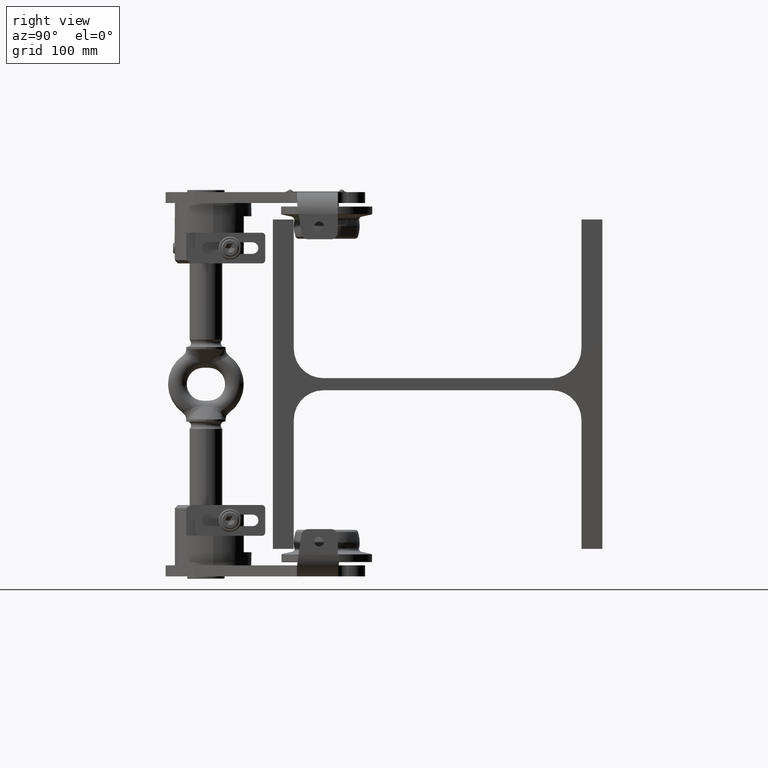
[diagram: clean part render]
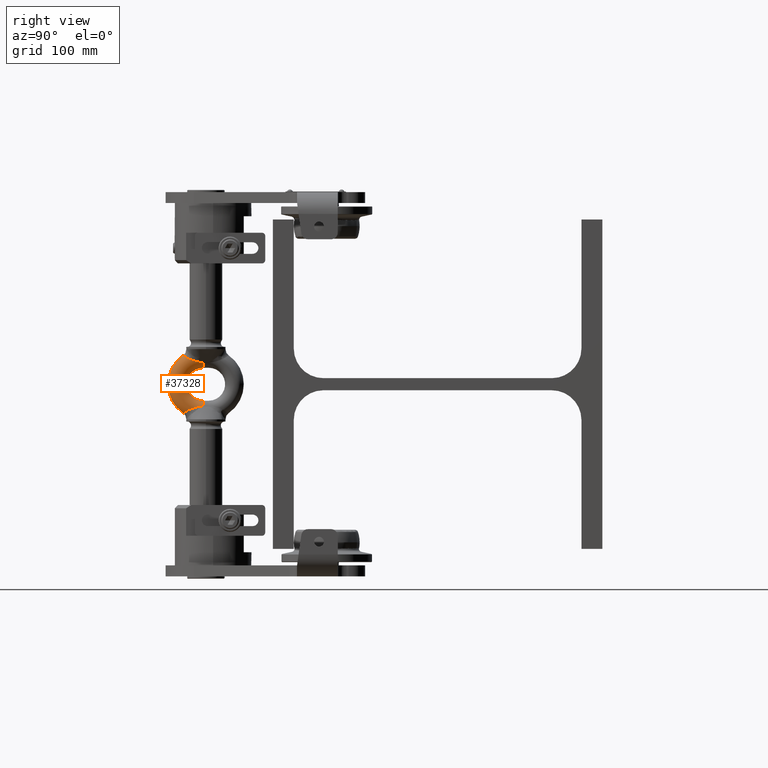
[diagram: same view with one face highlighted and labeled with its STEP entity id]
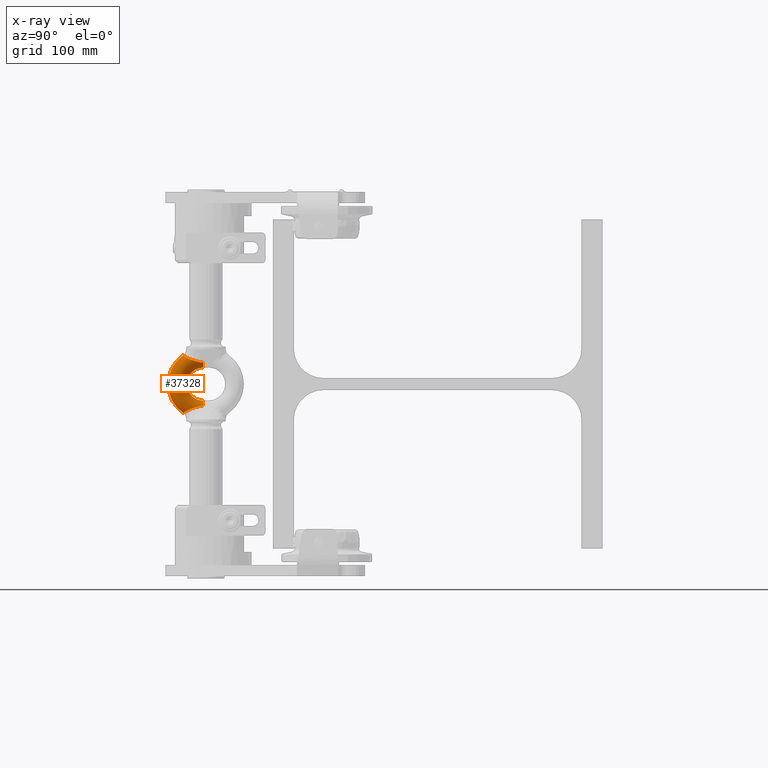
[diagram: x-ray of the same camera — body ghosted, the highlighted face saturated]
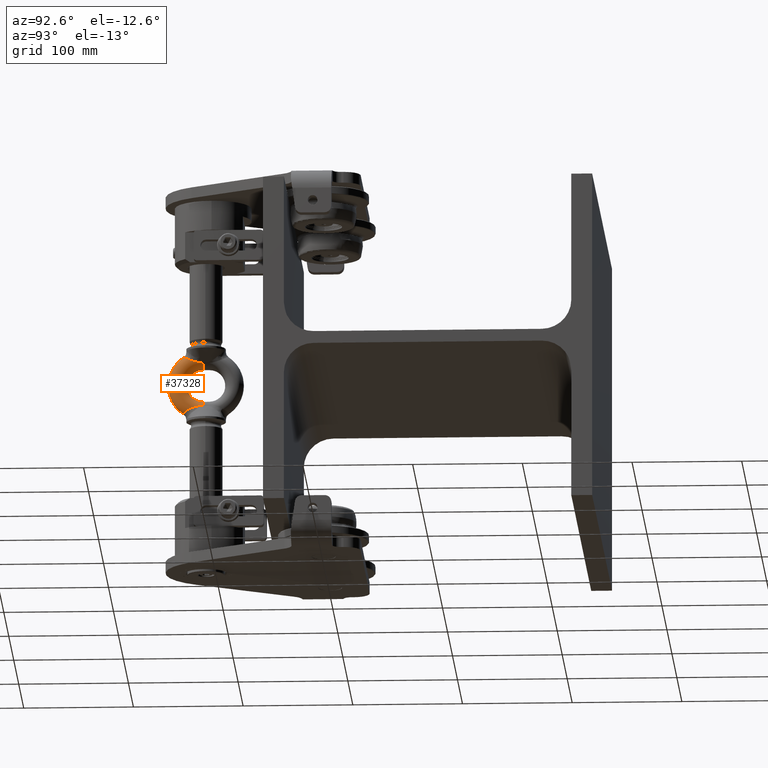
[diagram: same view with one face highlighted and labeled with its STEP entity id]
A machine part, right view. The second image highlights one B-rep face of the part: STEP entity #37328.
The next image is the same camera in x-ray: the body ghosted, the highlighted face saturated — about 0% of this face is hidden behind the body in this view.
A second angle (auxiliary view) of the same face is appended — the face is thin or edge-on in the first view.
In plain terms, the highlighted toroidal blend (fillet) surface has major radius 23.5 mm and minor (blend) radius 8.5 mm.
Its self-contained STEP definition (entity closure, byte-faithful):
#294 = VERTEX_POINT ( 'NONE', #15047 ) ;
#559 = EDGE_LOOP ( 'NONE', ( #16240, #27932, #44398, #47803, #18907, #39892, #36818, #15219 ) ) ;
#643 = CARTESIAN_POINT ( 'NONE',  ( 8.436953892678243200, -221.0724974940000600, -21.09512670447971400 ) ) ;
#1911 = CARTESIAN_POINT ( 'NONE',  ( -3.172077876196515500E-014, -231.6127029799513900, -26.38048503648215600 ) ) ;
#2274 = CARTESIAN_POINT ( 'NONE',  ( 8.033546829603968900, -226.2359166279160000, -22.98436222492669900 ) ) ;
#2712 = CARTESIAN_POINT ( 'NONE',  ( 7.774365471925071000, -216.2695698684135800, 19.87248625893940700 ) ) ;
#2896 = CARTESIAN_POINT ( 'NONE',  ( 7.926675991449887000, -217.3560716809722900, 20.06417413808369000 ) ) ;
#2976 = VERTEX_POINT ( 'NONE', #52168 ) ;
#3146 = VERTEX_POINT ( 'NONE', #12011 ) ;
#3769 = CARTESIAN_POINT ( 'NONE',  ( 7.559127262799677300, -213.4999999999996900, 19.61289374665443900 ) ) ;
#4640 = CARTESIAN_POINT ( 'NONE',  ( 7.774547543605586400, -216.2709462932519400, -19.87270462672599800 ) ) ;
#5076 = AXIS2_PLACEMENT_3D ( 'NONE', #40560, #31699, #7305 ) ;
#5200 = CARTESIAN_POINT ( 'NONE',  ( 8.498110677027188600, -222.1291866266497800, -21.43922223185007800 ) ) ;
#5316 = B_SPLINE_CURVE_WITH_KNOTS ( 'NONE', 3,
 ( #19326, #52559, #27631, #27823, #2712, #2896, #31815, #52734, #15504, #11137, #35968, #48542, #40313, #44489, #15309, #6895 ),
 .UNSPECIFIED., .F., .F.,
 ( 4, 2, 2, 2, 2, 2, 2, 4 ),
 ( 0.0000000000000000000, 0.001673460226891921600, 0.003346920453783843200, 0.005020380680675764500, 0.006693840907567686300, 0.008367301134459609000, 0.01004076136135152900, 0.01338768181513537600 ),
 .UNSPECIFIED. ) ;
#5560 = CARTESIAN_POINT ( 'NONE',  ( 0.4638226216664442200, -231.6127029799514200, -26.38048503648212400 ) ) ;
#5583 = VERTEX_POINT ( 'NONE', #3769 ) ;
#5839 = DIRECTION ( 'NONE',  ( -1.203706215242022400E-035, 1.000000000000000000, 1.203706215242022400E-035 ) ) ;
#5901 = CARTESIAN_POINT ( 'NONE',  ( 7.910821924884322300, -226.6473448277452000, -23.16226467535799600 ) ) ;
#6098 = EDGE_CURVE ( 'NONE', #3146, #23885, #17830, .T. ) ;
#6269 = CARTESIAN_POINT ( 'NONE',  ( 7.394690100199699900, -227.8063610527885900, -23.73336829731577400 ) ) ;
#6360 = CARTESIAN_POINT ( 'NONE',  ( 0.4632860262234975200, -231.6127029799513100, 26.38048503648218500 ) ) ;
#6710 = CARTESIAN_POINT ( 'NONE',  ( 7.760995064850495100, -227.0418542883218400, 23.34756826584106200 ) ) ;
#6881 = CARTESIAN_POINT ( 'NONE',  ( 1.834805980854516300, -231.4777054837981000, 26.24552866953798300 ) ) ;
#6895 = CARTESIAN_POINT ( 'NONE',  ( 8.033546829602984800, -226.2359166279193200, 22.98436222492813000 ) ) ;
#6913 = DIRECTION ( 'NONE',  ( 7.342992169604158900E-020, -4.285883114025955000E-067, 1.000000000000000000 ) ) ;
#7305 = DIRECTION ( 'NONE',  ( 7.342992169588460200E-020, 0.0000000000000000000, 1.000000000000000000 ) ) ;
#8835 = CARTESIAN_POINT ( 'NONE',  ( 8.033546829603968900, -226.2359166279160000, -22.98436222492669900 ) ) ;
#8926 = EDGE_CURVE ( 'NONE', #23885, #5583, #23376, .T. ) ;
#10302 = CARTESIAN_POINT ( 'NONE',  ( 7.182092030083409500, -228.1663633484419600, -23.92914444497887100 ) ) ;
#10531 = CARTESIAN_POINT ( 'NONE',  ( -3.306168833845509700E-014, -213.4999999999996300, 23.50000000000000000 ) ) ;
#10577 = DIRECTION ( 'NONE',  ( 7.342992169607719500E-020, 0.0000000000000000000, 1.000000000000000000 ) ) ;
#10932 = CARTESIAN_POINT ( 'NONE',  ( 7.184014511383568700, -228.1635571586882900, 23.92755204483577100 ) ) ;
#11059 = B_SPLINE_CURVE_WITH_KNOTS ( 'NONE', 3,
 ( #35261, #48187, #6710, #39396, #10932, #23465, #22770, #48008, #26912, #27108, #52541, #14603, #6881, #35954, #6360, #11123 ),
 .UNSPECIFIED., .F., .F.,
 ( 4, 2, 2, 2, 2, 2, 2, 4 ),
 ( 0.0000000000000000000, 0.001382745869638021600, 0.002765491739276043300, 0.004148237608914064900, 0.005530983478552086600, 0.008296475217828129900, 0.009679221087466142000, 0.01106196695710415400 ),
 .UNSPECIFIED. ) ;
#11123 = CARTESIAN_POINT ( 'NONE',  ( -3.443120621827953700E-014, -231.6127029799513900, 26.38048503648215600 ) ) ;
#11137 = CARTESIAN_POINT ( 'NONE',  ( 8.385914111975422400, -220.5433579218909900, 20.92729236923331000 ) ) ;
#11885 = AXIS2_PLACEMENT_3D ( 'NONE', #39620, #14988, #6913 ) ;
#12011 = CARTESIAN_POINT ( 'NONE',  ( -3.202246426017459100E-014, -213.4999999999999700, -15.00000000000000000 ) ) ;
#12069 = CARTESIAN_POINT ( 'NONE',  ( 7.559127262799685300, -213.4999999999999700, -19.61289374665445400 ) ) ;
#12899 = CARTESIAN_POINT ( 'NONE',  ( 8.385842717910328800, -220.5426974395350000, -20.92708601020789400 ) ) ;
#13462 = CARTESIAN_POINT ( 'NONE',  ( -3.172077876196515500E-014, -231.6127029799513900, -26.38048503648215600 ) ) ;
#13644 = CARTESIAN_POINT ( 'NONE',  ( 3.148586283547150100, -231.1647207469772500, -25.95833939416868200 ) ) ;
#13991 = CARTESIAN_POINT ( 'NONE',  ( 5.805078535750174900, -229.7348456335009500, -24.88557040155862100 ) ) ;
#14177 = B_SPLINE_CURVE_WITH_KNOTS ( 'NONE', 3,
 ( #13462, #5560, #42044, #34471, #17637, #21798, #13644, #38623, #25961, #47381, #18329, #35005, #31341, #13991, #22847, #47743, #35528, #10302, #6269, #35355, #5901, #2274 ),
 .UNSPECIFIED., .F., .F.,
 ( 4, 2, 2, 2, 2, 2, 2, 2, 2, 2, 4 ),
 ( 0.01106196695711255500, 0.01244631437544920600, 0.01383066179378585800, 0.01452283550295417400, 0.01521500921212249100, 0.01659935663045912200, 0.01729153033962743700, 0.01798370404879575200, 0.01936805146713232700, 0.02075239888546890100, 0.02213674630380547600 ),
 .UNSPECIFIED. ) ;
#14603 = CARTESIAN_POINT ( 'NONE',  ( 2.283317817531227400, -231.3959370703879000, 26.16612557632001000 ) ) ;
#14711 = CIRCLE ( 'NONE', #44403, 32.00000000000000000 ) ;
#14988 = DIRECTION ( 'NONE',  ( -1.000000000000000000, -1.203706215242022400E-035, 7.342992169604158900E-020 ) ) ;
#15047 = CARTESIAN_POINT ( 'NONE',  ( 8.033546829603968900, -226.2359166279160000, -22.98436222492669900 ) ) ;
#15219 = ORIENTED_EDGE ( 'NONE', *, *, #27683, .T. ) ;
#15309 = CARTESIAN_POINT ( 'NONE',  ( 8.330585538749049900, -225.2410879802874600, 22.55323274130668000 ) ) ;
#15373 = EDGE_CURVE ( 'NONE', #29085, #40547, #14711, .T. ) ;
#15504 = CARTESIAN_POINT ( 'NONE',  ( 8.256039911982885100, -219.4861712147299200, 20.60626332106565800 ) ) ;
#16030 = EDGE_CURVE ( 'NONE', #3146, #24334, #52114, .T. ) ;
#16240 = ORIENTED_EDGE ( 'NONE', *, *, #15373, .F. ) ;
#17229 = CARTESIAN_POINT ( 'NONE',  ( 8.508368360528280000, -222.6542570671395800, -21.61565742733633400 ) ) ;
#17637 = CARTESIAN_POINT ( 'NONE',  ( 2.284822189020913700, -231.3953850774397000, -26.16565341312688300 ) ) ;
#17830 = CIRCLE ( 'NONE', #5076, 15.00000000000000000 ) ;
#18329 = CARTESIAN_POINT ( 'NONE',  ( 4.765762826314710500, -230.4749054584931700, -25.40303718732111800 ) ) ;
#18907 = ORIENTED_EDGE ( 'NONE', *, *, #6098, .T. ) ;
#19214 = AXIS2_PLACEMENT_3D ( 'NONE', #10531, #23077, #27270 ) ;
#19326 = CARTESIAN_POINT ( 'NONE',  ( 7.559127262799677300, -213.4999999999996900, 19.61289374665443900 ) ) ;
#19707 = EDGE_CURVE ( 'NONE', #29085, #294, #14177, .T. ) ;
#21010 = CARTESIAN_POINT ( 'NONE',  ( 7.559127262799685300, -213.4999999999999700, -19.61289374665445400 ) ) ;
#21769 = CARTESIAN_POINT ( 'NONE',  ( 7.607898068798485600, -214.6138675099460300, -19.68357328288468700 ) ) ;
#21798 = CARTESIAN_POINT ( 'NONE',  ( 2.934741154244476100, -231.2280638885277100, -26.01427774808153300 ) ) ;
#22770 = CARTESIAN_POINT ( 'NONE',  ( 6.424268037674603500, -229.1552572851646500, 24.51024583028981900 ) ) ;
#22847 = CARTESIAN_POINT ( 'NONE',  ( 5.966247978091526100, -229.5941962807216000, -24.79257777139376300 ) ) ;
#23077 = DIRECTION ( 'NONE',  ( 1.046546736256561500E-033, -1.000000000000000000, 1.408839407981976600E-014 ) ) ;
#23118 = CARTESIAN_POINT ( 'NONE',  ( -3.306341394161495700E-014, -213.4999999999999700, -3.009265538105055500E-035 ) ) ;
#23376 = CIRCLE ( 'NONE', #19214, 8.500000000000000000 ) ;
#23465 = CARTESIAN_POINT ( 'NONE',  ( 6.696812826309758800, -228.8409597620185100, 24.31771801360258000 ) ) ;
#23885 = VERTEX_POINT ( 'NONE', #36846 ) ;
#24334 = VERTEX_POINT ( 'NONE', #12069 ) ;
#25514 = EDGE_CURVE ( 'NONE', #294, #24334, #31702, .T. ) ;
#25944 = CARTESIAN_POINT ( 'NONE',  ( 7.707850285550956700, -215.7204890694182200, -19.79835566781937200 ) ) ;
#25961 = CARTESIAN_POINT ( 'NONE',  ( 3.779516363432721800, -230.9413894337074900, -25.76940616030502400 ) ) ;
#26243 = CARTESIAN_POINT ( 'NONE',  ( -3.306513954477481600E-014, -213.4999999999999700, -23.50000000000000000 ) ) ;
#26912 = CARTESIAN_POINT ( 'NONE',  ( 5.482589876937688600, -230.0040187489386200, 25.06598573410313700 ) ) ;
#27108 = CARTESIAN_POINT ( 'NONE',  ( 4.397823346135577800, -230.7164712029814100, 25.57597263185252200 ) ) ;
#27270 = DIRECTION ( 'NONE',  ( -1.000000000000000000, 0.0000000000000000000, 0.0000000000000000000 ) ) ;
#27631 = CARTESIAN_POINT ( 'NONE',  ( 7.607863819434951900, -214.6132226181496800, 19.68353115087420600 ) ) ;
#27683 = EDGE_CURVE ( 'NONE', #2976, #40547, #11059, .T. ) ;
#27823 = CARTESIAN_POINT ( 'NONE',  ( 7.707665712135288100, -215.7187106817498500, 19.79814650362219200 ) ) ;
#27932 = ORIENTED_EDGE ( 'NONE', *, *, #19707, .T. ) ;
#29085 = VERTEX_POINT ( 'NONE', #1911 ) ;
#30120 = CARTESIAN_POINT ( 'NONE',  ( 7.574460406512437200, -214.0580214651938900, -19.64271160526424600 ) ) ;
#30907 = AXIS2_PLACEMENT_3D ( 'NONE', #26243, #5839, #50052 ) ;
#31341 = CARTESIAN_POINT ( 'NONE',  ( 5.472439830084336900, -229.9992389766075900, -25.06488655157032100 ) ) ;
#31699 = DIRECTION ( 'NONE',  ( -1.000000000000000000, -1.203706215242022400E-035, 7.342992169604158900E-020 ) ) ;
#31702 = B_SPLINE_CURVE_WITH_KNOTS ( 'NONE', 3,
 ( #8835, #33719, #37875, #17229, #5200, #643, #12899, #46257, #42382, #34082, #45901, #4640, #25944, #21769, #30120, #21010 ),
 .UNSPECIFIED., .F., .F.,
 ( 4, 2, 2, 2, 2, 2, 2, 4 ),
 ( 0.0000000000000000000, 0.003371336602413010100, 0.005057004903619514600, 0.006742673204826020100, 0.008428341506032525600, 0.01011400980723902900, 0.01179967810844553500, 0.01348534640965204000 ),
 .UNSPECIFIED. ) ;
#31815 = CARTESIAN_POINT ( 'NONE',  ( 8.012103469725715900, -217.8925964511005600, 20.18203515796618000 ) ) ;
#33717 = FACE_OUTER_BOUND ( 'NONE', #559, .T. ) ;
#33719 = CARTESIAN_POINT ( 'NONE',  ( 8.330479298749470000, -225.2414437945012100, -22.55338694072451100 ) ) ;
#34082 = CARTESIAN_POINT ( 'NONE',  ( 8.012117313590012600, -217.8926884514696700, -20.18206153499021500 ) ) ;
#34471 = CARTESIAN_POINT ( 'NONE',  ( 1.840423457577058800, -231.4768662035778000, -26.24470857406108600 ) ) ;
#35005 = CARTESIAN_POINT ( 'NONE',  ( 5.300197666609745900, -230.1237653337848300, -25.15171170250635100 ) ) ;
#35261 = CARTESIAN_POINT ( 'NONE',  ( 8.033546829602984800, -226.2359166279193200, 22.98436222492813000 ) ) ;
#35355 = CARTESIAN_POINT ( 'NONE',  ( 7.760297345767903600, -227.0439996739648100, -23.34853522374400800 ) ) ;
#35528 = CARTESIAN_POINT ( 'NONE',  ( 6.697227980187200600, -228.8402489374809400, -24.31733256276064400 ) ) ;
#35691 = TOROIDAL_SURFACE ( 'NONE', #11885, 23.50000000000000000, 8.500000000000000000 ) ;
#35954 = CARTESIAN_POINT ( 'NONE',  ( 0.9269487715850331900, -231.5858844853806000, 26.35258895159033100 ) ) ;
#35968 = CARTESIAN_POINT ( 'NONE',  ( 8.437016275276361600, -221.0732321825319100, 21.09536054762210400 ) ) ;
#36818 = ORIENTED_EDGE ( 'NONE', *, *, #41441, .T. ) ;
#36846 = CARTESIAN_POINT ( 'NONE',  ( -3.202246426017459100E-014, -213.4999999999997400, 15.00000000000000000 ) ) ;
#37328 = ADVANCED_FACE ( 'NONE', ( #33717 ), #35691, .T. ) ;
#37875 = CARTESIAN_POINT ( 'NONE',  ( 8.461781882911813200, -224.2164204265922100, -22.16325586094173500 ) ) ;
#38623 = CARTESIAN_POINT ( 'NONE',  ( 3.570518359232568000, -231.0216141789859700, -25.83608058414621700 ) ) ;
#39396 = CARTESIAN_POINT ( 'NONE',  ( 7.398558151568991500, -227.7989772908350100, 23.72952647949293600 ) ) ;
#39620 = CARTESIAN_POINT ( 'NONE',  ( -3.306341394161495700E-014, -213.4999999999999700, -3.009265538105055500E-035 ) ) ;
#39892 = ORIENTED_EDGE ( 'NONE', *, *, #8926, .T. ) ;
#40313 = CARTESIAN_POINT ( 'NONE',  ( 8.508370039768619700, -222.6550911638794900, 21.61594198959731700 ) ) ;
#40547 = VERTEX_POINT ( 'NONE', #45281 ) ;
#40560 = CARTESIAN_POINT ( 'NONE',  ( -3.202246416233970800E-014, -213.4999999999999700, -1.065295161627439600E-034 ) ) ;
#41441 = EDGE_CURVE ( 'NONE', #5583, #2976, #5316, .T. ) ;
#42044 = CARTESIAN_POINT ( 'NONE',  ( 0.9293989636729043100, -231.5857609355327000, -26.35245626647342100 ) ) ;
#42382 = CARTESIAN_POINT ( 'NONE',  ( 8.176983259097252000, -218.9571527733307900, -20.45342395409419100 ) ) ;
#44398 = ORIENTED_EDGE ( 'NONE', *, *, #25514, .T. ) ;
#44403 = AXIS2_PLACEMENT_3D ( 'NONE', #23118, #51672, #10577 ) ;
#44489 = CARTESIAN_POINT ( 'NONE',  ( 8.461707026444745600, -224.2171476931500000, 22.16352645544187900 ) ) ;
#45281 = CARTESIAN_POINT ( 'NONE',  ( -3.443120621827953700E-014, -231.6127029799513900, 26.38048503648215600 ) ) ;
#45901 = CARTESIAN_POINT ( 'NONE',  ( 7.926745514533069900, -217.3564898702183500, -20.06427242854196500 ) ) ;
#46257 = CARTESIAN_POINT ( 'NONE',  ( 8.255971919958362500, -219.4856971680072800, -20.60612517120822000 ) ) ;
#47381 = CARTESIAN_POINT ( 'NONE',  ( 4.385950768222688400, -230.6791170003607500, -25.55853810899893500 ) ) ;
#47743 = CARTESIAN_POINT ( 'NONE',  ( 6.424624547607733900, -229.1551778785371000, -24.51014663231652300 ) ) ;
#47803 = ORIENTED_EDGE ( 'NONE', *, *, #16030, .F. ) ;
#48008 = CARTESIAN_POINT ( 'NONE',  ( 5.818263074134555300, -229.7361916136656500, 24.88387903601080400 ) ) ;
#48187 = CARTESIAN_POINT ( 'NONE',  ( 7.910971438573366000, -226.6468435916828500, 23.16204793979209200 ) ) ;
#48542 = CARTESIAN_POINT ( 'NONE',  ( 8.498138546864963100, -222.1300118594196000, 21.43949636248294200 ) ) ;
#50052 = DIRECTION ( 'NONE',  ( -1.000000000000000000, 0.0000000000000000000, 0.0000000000000000000 ) ) ;
#51672 = DIRECTION ( 'NONE',  ( -1.000000000000000000, -1.203706215242022400E-035, 7.342992169604158900E-020 ) ) ;
#52114 = CIRCLE ( 'NONE', #30907, 8.500000000000000000 ) ;
#52168 = CARTESIAN_POINT ( 'NONE',  ( 8.033546829602984800, -226.2359166279193200, 22.98436222492813000 ) ) ;
#52541 = CARTESIAN_POINT ( 'NONE',  ( 3.597265866760422300, -231.0571661608218500, 25.85972113450399200 ) ) ;
#52559 = CARTESIAN_POINT ( 'NONE',  ( 7.574453641674471900, -214.0577752714022200, 19.64269844990709400 ) ) ;
#52734 = CARTESIAN_POINT ( 'NONE',  ( 8.177037225213695100, -218.9575038254556600, 20.45351637153340400 ) ) ;